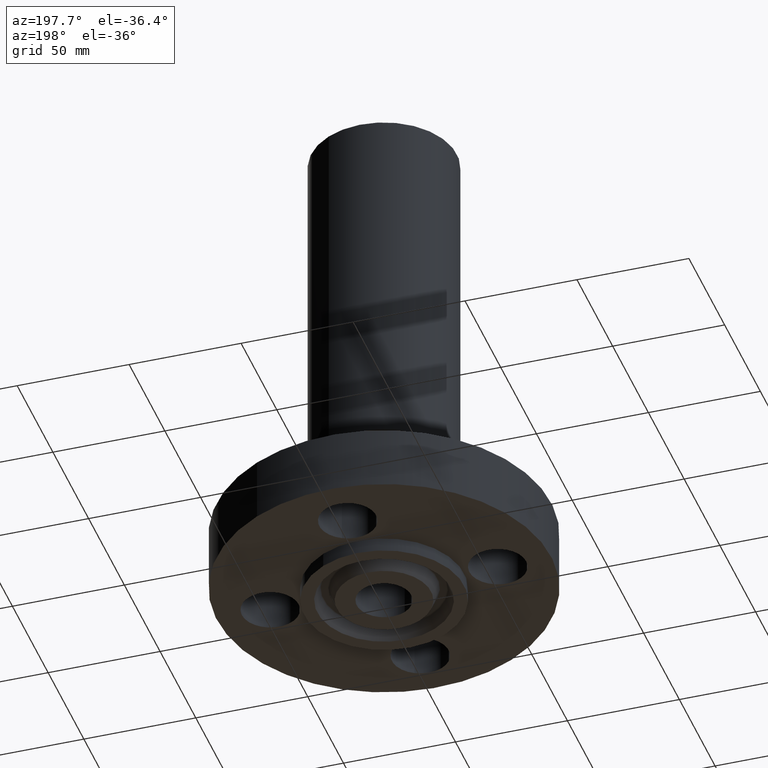
[diagram: clean part render]
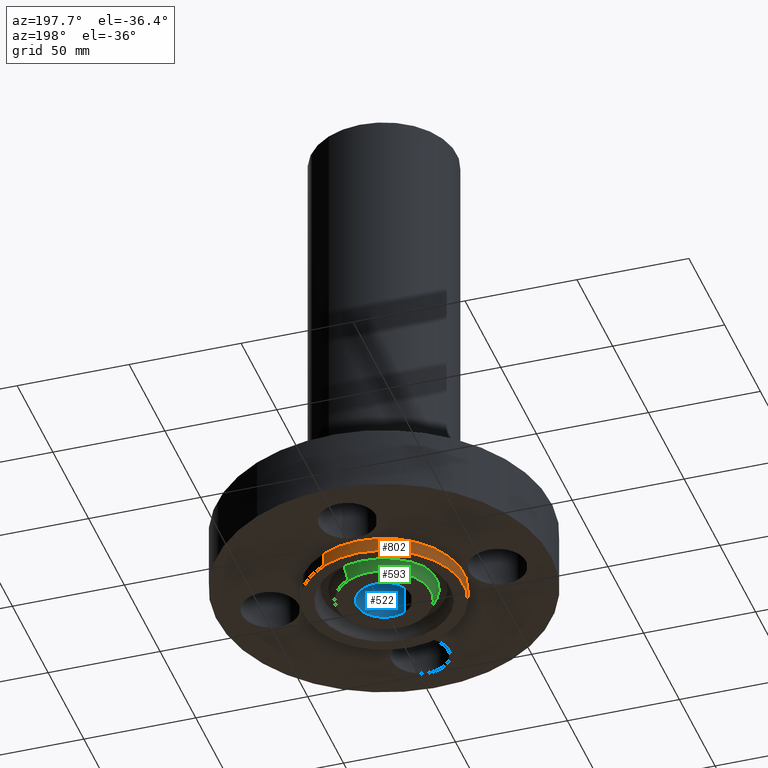
[diagram: same view with three faces highlighted in distinct colors, each labeled with its STEP entity id]
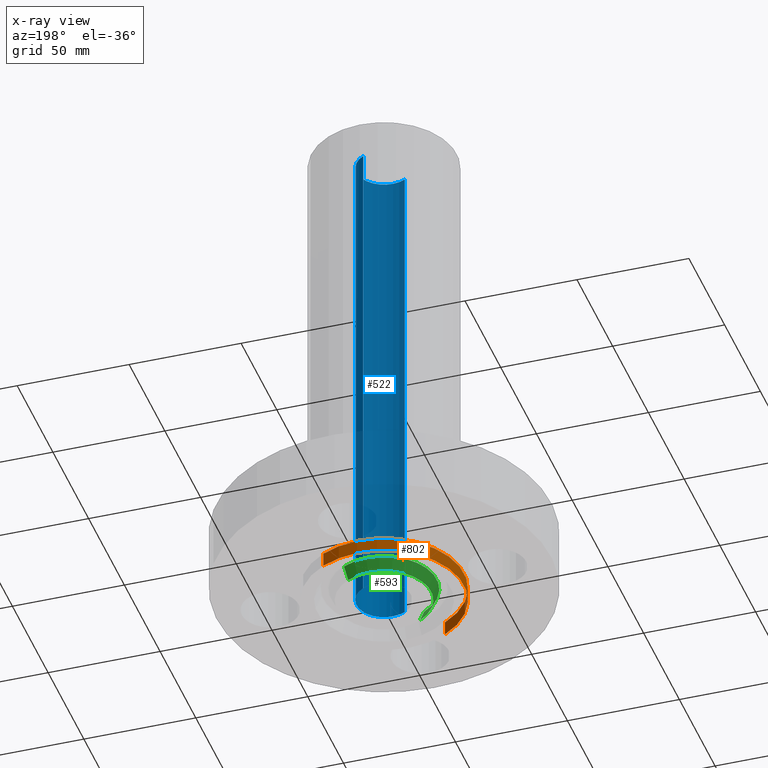
[diagram: x-ray of the same camera — body ghosted, the three highlighted faces saturated]
A machine part, auxiliary view with three faces highlighted in distinct colors.
The next image is the same camera in x-ray (body ghosted, the three faces saturated) — at least one of them is partly hidden behind the body in this view.
Their STEP definitions:

[orange] entity #802 — the highlighted cylindrical surface (partial cylindrical patch) has radius 35.7251 mm, axis along (0, 0, -1).
#118=AXIS2_PLACEMENT_3D('Circle Axis2P3D',#116,#117,$) ;
#760=AXIS2_PLACEMENT_3D('Circle Axis2P3D',#758,#759,$) ;
#784=AXIS2_PLACEMENT_3D('Cylinder Axis2P3D',#781,#782,#783) ;
#111=CARTESIAN_POINT('Vertex',(0.67431202005,1.2343198733,0.)) ;
#113=CARTESIAN_POINT('Vertex',(-0.67431202005,-1.2343198733,0.)) ;
#116=CARTESIAN_POINT('Axis2P3D Location',(0.,0.,0.)) ;
#758=CARTESIAN_POINT('Axis2P3D Location',(0.,0.,-0.250000000001)) ;
#762=CARTESIAN_POINT('Vertex',(-0.67431202005,-1.2343198733,-0.250000000001)) ;
#764=CARTESIAN_POINT('Vertex',(0.67431202005,1.2343198733,-0.250000000001)) ;
#781=CARTESIAN_POINT('Axis2P3D Location',(0.,0.,4.25000000002)) ;
#786=CARTESIAN_POINT('Line Origine',(-0.67431202005,-1.2343198733,-0.125000000001)) ;
#791=CARTESIAN_POINT('Line Origine',(0.67431202005,1.2343198733,-0.125000000001)) ;
#117=DIRECTION('Axis2P3D Direction',(0.,0.,-0.0393700787402)) ;
#759=DIRECTION('Axis2P3D Direction',(0.,0.,-0.0393700787402)) ;
#782=DIRECTION('Axis2P3D Direction',(0.,0.,-0.0393700787402)) ;
#783=DIRECTION('Axis2P3D XDirection',(0.0188750212049,0.0345504945626,0.)) ;
#787=DIRECTION('Vector Direction',(0.,0.,-0.0393700787402)) ;
#792=DIRECTION('Vector Direction',(0.,0.,-0.0393700787402)) ;
#788=VECTOR('Line Direction',#787,0.0393700787402) ;
#793=VECTOR('Line Direction',#792,0.0393700787402) ;
#797=ORIENTED_EDGE('',*,*,#766,.F.) ;
#798=ORIENTED_EDGE('',*,*,#790,.T.) ;
#799=ORIENTED_EDGE('',*,*,#120,.T.) ;
#800=ORIENTED_EDGE('',*,*,#795,.F.) ;
#802=ADVANCED_FACE('PartBody',(#801),#785,.T.) ;
#119=CIRCLE('generated circle',#118,1.40650000001) ;
#761=CIRCLE('generated circle',#760,1.40650000001) ;
#785=CYLINDRICAL_SURFACE('generated cylinder',#784,1.40650000001) ;
#120=EDGE_CURVE('',#114,#112,#119,.T.) ;
#766=EDGE_CURVE('',#763,#765,#761,.T.) ;
#790=EDGE_CURVE('',#763,#114,#789,.F.) ;
#795=EDGE_CURVE('',#765,#112,#794,.F.) ;
#796=EDGE_LOOP('',(#797,#798,#799,#800)) ;
#801=FACE_OUTER_BOUND('',#796,.T.) ;
#789=LINE('Line',#786,#788) ;
#794=LINE('Line',#791,#793) ;
#112=VERTEX_POINT('',#111) ;
#114=VERTEX_POINT('',#113) ;
#763=VERTEX_POINT('',#762) ;
#765=VERTEX_POINT('',#764) ;

[blue] entity #522 — the highlighted cylindrical surface (edge-blend (fillet) strip) has radius 12.192 mm, axis along (0, 0, -1).
#484=AXIS2_PLACEMENT_3D('Circle Axis2P3D',#482,#483,$) ;
#495=AXIS2_PLACEMENT_3D('Cylinder Axis2P3D',#492,#493,#494) ;
#506=AXIS2_PLACEMENT_3D('Circle Axis2P3D',#504,#505,$) ;
#477=CARTESIAN_POINT('Vertex',(-0.230124258531,-0.421239629709,8.75000000004)) ;
#479=CARTESIAN_POINT('Vertex',(0.230124258531,0.421239629709,8.75000000004)) ;
#482=CARTESIAN_POINT('Axis2P3D Location',(0.,0.,8.75000000003)) ;
#492=CARTESIAN_POINT('Axis2P3D Location',(0.,0.,4.25000000002)) ;
#497=CARTESIAN_POINT('Line Origine',(0.230124258531,0.421239629709,4.25000000002)) ;
#501=CARTESIAN_POINT('Vertex',(0.230124258531,0.421239629709,-0.250000000001)) ;
#504=CARTESIAN_POINT('Axis2P3D Location',(0.,0.,-0.250000000001)) ;
#508=CARTESIAN_POINT('Vertex',(-0.230124258531,-0.421239629709,-0.250000000001)) ;
#511=CARTESIAN_POINT('Line Origine',(-0.230124258531,-0.421239629709,4.25000000002)) ;
#483=DIRECTION('Axis2P3D Direction',(0.,0.,-0.0393700787402)) ;
#493=DIRECTION('Axis2P3D Direction',(0.,0.,-0.0393700787402)) ;
#494=DIRECTION('Axis2P3D XDirection',(-0.0188750212049,-0.0345504945626,0.)) ;
#498=DIRECTION('Vector Direction',(0.,0.,-0.0393700787402)) ;
#505=DIRECTION('Axis2P3D Direction',(0.,0.,-0.0393700787402)) ;
#512=DIRECTION('Vector Direction',(0.,0.,-0.0393700787402)) ;
#499=VECTOR('Line Direction',#498,0.0393700787402) ;
#513=VECTOR('Line Direction',#512,0.0393700787402) ;
#517=ORIENTED_EDGE('',*,*,#486,.F.) ;
#518=ORIENTED_EDGE('',*,*,#503,.T.) ;
#519=ORIENTED_EDGE('',*,*,#510,.T.) ;
#520=ORIENTED_EDGE('',*,*,#515,.F.) ;
#522=ADVANCED_FACE('PartBody',(#521),#496,.F.) ;
#485=CIRCLE('generated circle',#484,0.480000000002) ;
#507=CIRCLE('generated circle',#506,0.480000000002) ;
#496=CYLINDRICAL_SURFACE('generated cylinder',#495,0.480000000002) ;
#486=EDGE_CURVE('',#480,#478,#485,.T.) ;
#503=EDGE_CURVE('',#480,#502,#500,.T.) ;
#510=EDGE_CURVE('',#502,#509,#507,.T.) ;
#515=EDGE_CURVE('',#478,#509,#514,.T.) ;
#516=EDGE_LOOP('',(#517,#518,#519,#520)) ;
#521=FACE_OUTER_BOUND('',#516,.T.) ;
#500=LINE('Line',#497,#499) ;
#514=LINE('Line',#511,#513) ;
#478=VERTEX_POINT('',#477) ;
#480=VERTEX_POINT('',#479) ;
#502=VERTEX_POINT('',#501) ;
#509=VERTEX_POINT('',#508) ;

[green] entity #593 — the highlighted conical surface has half-angle 23 deg.
#542=AXIS2_PLACEMENT_3D('Circle Axis2P3D',#540,#541,$) ;
#566=AXIS2_PLACEMENT_3D('Cone Axis2P3D',#563,#564,#565) ;
#577=AXIS2_PLACEMENT_3D('Circle Axis2P3D',#575,#576,$) ;
#540=CARTESIAN_POINT('Axis2P3D Location',(0.,0.,-0.250000000001)) ;
#544=CARTESIAN_POINT('Vertex',(-0.396964345966,-0.726638361248,-0.250000000001)) ;
#546=CARTESIAN_POINT('Vertex',(0.396964345966,0.726638361248,-0.250000000001)) ;
#563=CARTESIAN_POINT('Axis2P3D Location',(0.,0.,-0.250000000001)) ;
#568=CARTESIAN_POINT('Line Origine',(-0.42048052964,-0.769684446725,-0.134443667509)) ;
#572=CARTESIAN_POINT('Vertex',(-0.443996713314,-0.812730532203,-0.0188873350169)) ;
#575=CARTESIAN_POINT('Axis2P3D Location',(0.,0.,-0.0188873350169)) ;
#579=CARTESIAN_POINT('Vertex',(0.443996713314,0.812730532203,-0.0188873350169)) ;
#582=CARTESIAN_POINT('Line Origine',(0.42048052964,0.769684446725,-0.134443667509)) ;
#541=DIRECTION('Axis2P3D Direction',(0.,0.,-0.0393700787402)) ;
#564=DIRECTION('Axis2P3D Direction',(-0.,-0.,0.0393700787402)) ;
#565=DIRECTION('Axis2P3D XDirection',(-0.0188750212049,-0.0345504945626,0.)) ;
#569=DIRECTION('Vector Direction',(-0.00737505833565,-0.0134999537303,0.0362403485611)) ;
#576=DIRECTION('Axis2P3D Direction',(-0.,0.,0.0393700787402)) ;
#583=DIRECTION('Vector Direction',(0.00737505833565,0.0134999537303,0.0362403485611)) ;
#570=VECTOR('Line Direction',#569,0.0393700787402) ;
#584=VECTOR('Line Direction',#583,0.0393700787402) ;
#588=ORIENTED_EDGE('',*,*,#548,.F.) ;
#589=ORIENTED_EDGE('',*,*,#574,.T.) ;
#590=ORIENTED_EDGE('',*,*,#581,.T.) ;
#591=ORIENTED_EDGE('',*,*,#586,.F.) ;
#593=ADVANCED_FACE('PartBody',(#592),#567,.T.) ;
#543=CIRCLE('generated circle',#542,0.828000000003) ;
#578=CIRCLE('generated circle',#577,0.926101505996) ;
#567=CONICAL_SURFACE('Cone',#566,0.828000000003,0.401425727959) ;
#548=EDGE_CURVE('',#545,#547,#543,.T.) ;
#574=EDGE_CURVE('',#545,#573,#571,.T.) ;
#581=EDGE_CURVE('',#573,#580,#578,.F.) ;
#586=EDGE_CURVE('',#547,#580,#585,.T.) ;
#587=EDGE_LOOP('',(#588,#589,#590,#591)) ;
#592=FACE_OUTER_BOUND('',#587,.T.) ;
#571=LINE('Line',#568,#570) ;
#585=LINE('Line',#582,#584) ;
#545=VERTEX_POINT('',#544) ;
#547=VERTEX_POINT('',#546) ;
#573=VERTEX_POINT('',#572) ;
#580=VERTEX_POINT('',#579) ;